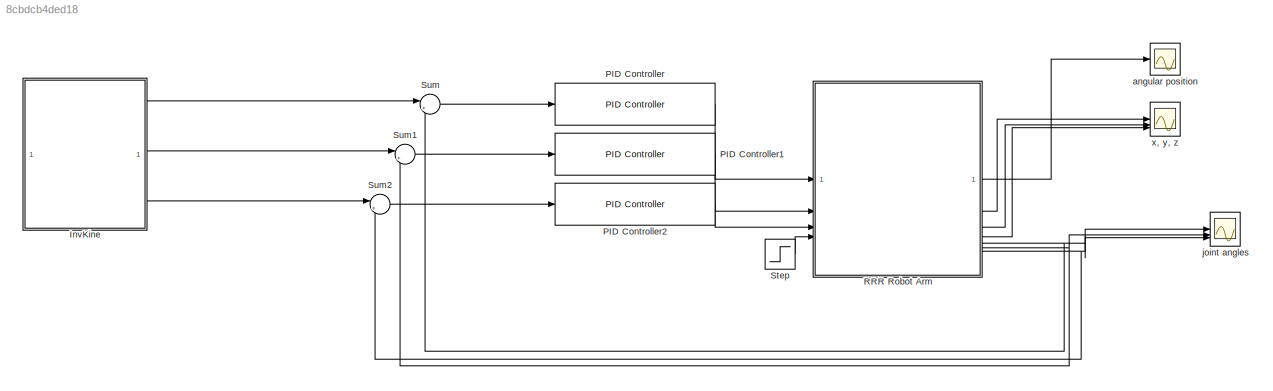
MODEL slx_8cbdcb4ded18
KIND model
CONFIG AbsTol = 1e-3
CONFIG EnableMultiTasking = on
CONFIG FixedStep = auto
CONFIG MaxStep = auto
CONFIG MinStep = auto
CONFIG RelTol = 1e-3
CONFIG SampleTimeConstraint = Unconstrained
CONFIG SolverName = VariableStepAuto
CONFIG StartTime = 0.0
CONFIG StopTime = 10
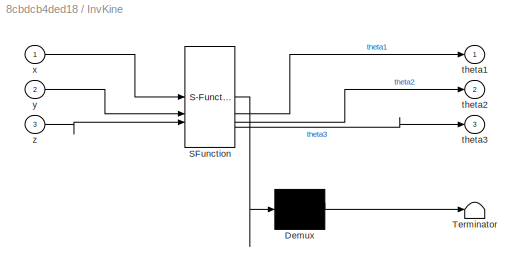
BLOCK [SubSystem] InvKine
  ErrorFcn = Stateflow.Translate.translate
  LibrarySourceBlock = simulink/User-Defined\nFunctions/MATLAB Function
  PermitHierarchicalResolution = ExplicitOnly
  SFBlockType = MATLAB Function
  TreatAsAtomicUnit = on
BLOCK [Demux] InvKine/ Demux 
  Outputs = 1
BLOCK [S-Function] InvKine/ SFunction 
  EnableBusSupport = off
  FunctionName = sf_sfun
  PortCounts = [3 4]
  SFcnIsStateOwnerBlock = off
  SFunctionDeploymentMode = off
  Tag = Stateflow S-Function 2
BLOCK [Terminator] InvKine/ Terminator 
BLOCK [Outport] InvKine/theta1
BLOCK [Outport] InvKine/theta2
  Port = 2
BLOCK [Outport] InvKine/theta3
  Port = 3
BLOCK [Inport] InvKine/x
BLOCK [Inport] InvKine/y
  Port = 2
BLOCK [Inport] InvKine/z
  Port = 3
BLOCK [Reference] PID Controller  REF=slpidlib/PID Controller
  LibrarySourceBlock = simulink/Continuous/PID Controller
  SourceBlock = slpidlib/PID Controller
  SourceType = PID 1dof
BLOCK [Reference] PID Controller1  REF=slpidlib/PID Controller
  LibrarySourceBlock = simulink/Continuous/PID Controller
  SourceBlock = slpidlib/PID Controller
  SourceType = PID 1dof
BLOCK [Reference] PID Controller2  REF=slpidlib/PID Controller
  LibrarySourceBlock = simulink/Continuous/PID Controller
  SourceBlock = slpidlib/PID Controller
  SourceType = PID 1dof
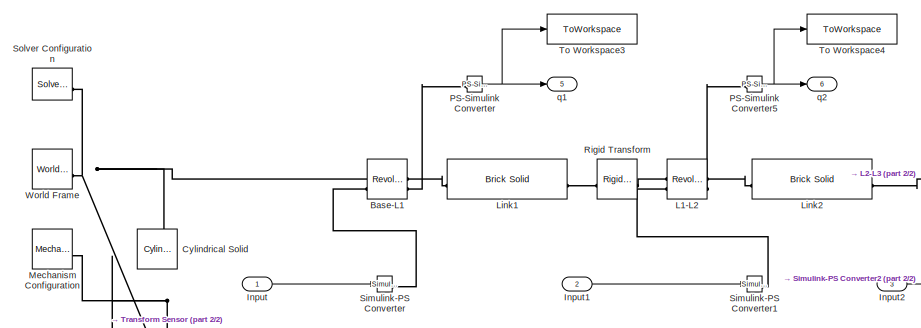
[diagram: RRR Robot Arm - part 1/2, top left region]
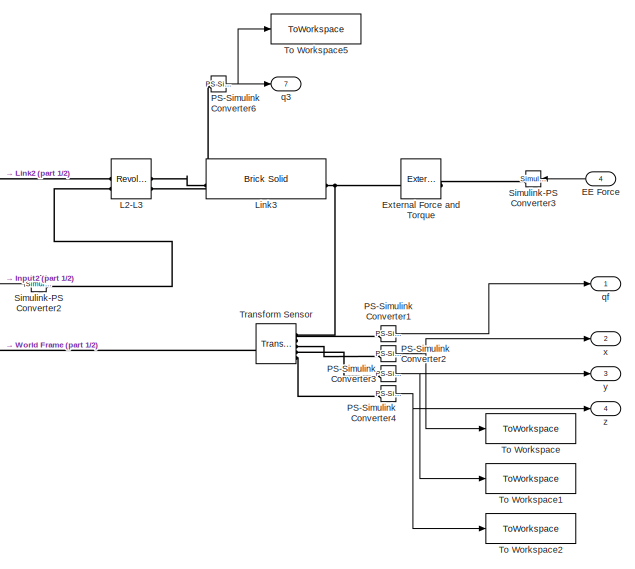
[diagram: RRR Robot Arm - part 2/2, right side, full height]
BLOCK [SubSystem] RRR Robot Arm
BLOCK [Reference] RRR Robot Arm/Base-L1  REF=sm_lib/Joints/Revolute Joint
  SourceBlock = sm_lib/Joints/Revolute Joint
  SourceType = Revolute Joint
BLOCK [Reference] RRR Robot Arm/Cylindrical Solid  REF=sm_lib/Body Elements/Cylindrical Solid
  NameLocation = left
  SourceBlock = sm_lib/Body Elements/Cylindrical Solid
  SourceType = Cylindrical Solid
BLOCK [Inport] RRR Robot Arm/EE Force
  Port = 4
BLOCK [Reference] RRR Robot Arm/External Force and Torque  REF=sm_lib/Forces and
Torques/External Force
and Torque
  NameLocation = top
  SourceBlock = sm_lib/Forces and\nTorques/External Force\nand Torque
  SourceType = External Force\nand Torque
BLOCK [Inport] RRR Robot Arm/Input
BLOCK [Inport] RRR Robot Arm/Input1
  Port = 2
BLOCK [Inport] RRR Robot Arm/Input2
  Port = 3
BLOCK [Reference] RRR Robot Arm/L1-L2  REF=sm_lib/Joints/Revolute Joint
  SourceBlock = sm_lib/Joints/Revolute Joint
  SourceType = Revolute Joint
BLOCK [Reference] RRR Robot Arm/L2-L3  REF=sm_lib/Joints/Revolute Joint
  SourceBlock = sm_lib/Joints/Revolute Joint
  SourceType = Revolute Joint
BLOCK [Reference] RRR Robot Arm/Link1  REF=sm_lib/Body Elements/Brick Solid
  SourceBlock = sm_lib/Body Elements/Brick Solid
  SourceType = Brick Solid
BLOCK [Reference] RRR Robot Arm/Link2  REF=sm_lib/Body Elements/Brick Solid
  SourceBlock = sm_lib/Body Elements/Brick Solid
  SourceType = Brick Solid
BLOCK [Reference] RRR Robot Arm/Link3  REF=sm_lib/Body Elements/Brick Solid
  SourceBlock = sm_lib/Body Elements/Brick Solid
  SourceType = Brick Solid
BLOCK [Reference] RRR Robot Arm/Mechanism Configuration  REF=sm_lib/Utilities/Mechanism
Configuration
  SourceBlock = sm_lib/Utilities/Mechanism\nConfiguration
  SourceType = Mechanism\nConfiguration
BLOCK [Reference] RRR Robot Arm/PS-Simulink Converter  REF=nesl_utility/PS-Simulink
Converter
  SourceBlock = nesl_utility/PS-Simulink\nConverter
  SourceType = PS-Simulink\nConverter
BLOCK [Reference] RRR Robot Arm/PS-Simulink Converter1  REF=nesl_utility/PS-Simulink
Converter
  SourceBlock = nesl_utility/PS-Simulink\nConverter
  SourceType = PS-Simulink\nConverter
BLOCK [Reference] RRR Robot Arm/PS-Simulink Converter2  REF=nesl_utility/PS-Simulink
Converter
  SourceBlock = nesl_utility/PS-Simulink\nConverter
  SourceType = PS-Simulink\nConverter
BLOCK [Reference] RRR Robot Arm/PS-Simulink Converter3  REF=nesl_utility/PS-Simulink
Converter
  SourceBlock = nesl_utility/PS-Simulink\nConverter
  SourceType = PS-Simulink\nConverter
BLOCK [Reference] RRR Robot Arm/PS-Simulink Converter4  REF=nesl_utility/PS-Simulink
Converter
  SourceBlock = nesl_utility/PS-Simulink\nConverter
  SourceType = PS-Simulink\nConverter
BLOCK [Reference] RRR Robot Arm/PS-Simulink Converter5  REF=nesl_utility/PS-Simulink
Converter
  SourceBlock = nesl_utility/PS-Simulink\nConverter
  SourceType = PS-Simulink\nConverter
BLOCK [Reference] RRR Robot Arm/PS-Simulink Converter6  REF=nesl_utility/PS-Simulink
Converter
  SourceBlock = nesl_utility/PS-Simulink\nConverter
  SourceType = PS-Simulink\nConverter
BLOCK [Reference] RRR Robot Arm/Rigid Transform  REF=sm_lib/Frames and
Transforms/Rigid
Transform
  SourceBlock = sm_lib/Frames and\nTransforms/Rigid\nTransform
  SourceType = Rigid\nTransform
BLOCK [Reference] RRR Robot Arm/Simulink-PS Converter  REF=nesl_utility/Simulink-PS
Converter
  SourceBlock = nesl_utility/Simulink-PS\nConverter
  SourceType = Simulink-PS\nConverter
BLOCK [Reference] RRR Robot Arm/Simulink-PS Converter1  REF=nesl_utility/Simulink-PS
Converter
  SourceBlock = nesl_utility/Simulink-PS\nConverter
  SourceType = Simulink-PS\nConverter
BLOCK [Reference] RRR Robot Arm/Simulink-PS Converter2  REF=nesl_utility/Simulink-PS
Converter
  SourceBlock = nesl_utility/Simulink-PS\nConverter
  SourceType = Simulink-PS\nConverter
BLOCK [Reference] RRR Robot Arm/Simulink-PS Converter3  REF=nesl_utility/Simulink-PS
Converter
  SourceBlock = nesl_utility/Simulink-PS\nConverter
  SourceType = Simulink-PS\nConverter
BLOCK [Reference] RRR Robot Arm/Solver Configuration  REF=nesl_utility/Solver
Configuration
  SourceBlock = nesl_utility/Solver\nConfiguration
  SourceType = Solver\nConfiguration
BLOCK [ToWorkspace] RRR Robot Arm/To Workspace
  FixptAsFi = on
  MaxDataPoints = inf
  SampleTime = -1
  SaveFormat = Timeseries
  VariableName = X
BLOCK [ToWorkspace] RRR Robot Arm/To Workspace1
  FixptAsFi = on
  MaxDataPoints = inf
  SampleTime = -1
  SaveFormat = Timeseries
  VariableName = Y
BLOCK [ToWorkspace] RRR Robot Arm/To Workspace2
  FixptAsFi = on
  MaxDataPoints = inf
  SampleTime = -1
  SaveFormat = Timeseries
  VariableName = Z
BLOCK [ToWorkspace] RRR Robot Arm/To Workspace3
  FixptAsFi = on
  MaxDataPoints = inf
  SampleTime = -1
  SaveFormat = Timeseries
  VariableName = theta1
BLOCK [ToWorkspace] RRR Robot Arm/To Workspace4
  FixptAsFi = on
  MaxDataPoints = inf
  SampleTime = -1
  SaveFormat = Timeseries
  VariableName = theta2
BLOCK [ToWorkspace] RRR Robot Arm/To Workspace5
  FixptAsFi = on
  MaxDataPoints = inf
  SampleTime = -1
  SaveFormat = Timeseries
  VariableName = theta3
BLOCK [Reference] RRR Robot Arm/Transform Sensor  REF=sm_lib/Frames and
Transforms/Transform
Sensor
  SourceBlock = sm_lib/Frames and\nTransforms/Transform\nSensor
  SourceType = Transform\nSensor
BLOCK [Reference] RRR Robot Arm/World Frame  REF=sm_lib/Frames and
Transforms/World Frame
  SourceBlock = sm_lib/Frames and\nTransforms/World Frame
  SourceType = World Frame
BLOCK [Outport] RRR Robot Arm/q1
  Port = 5
BLOCK [Outport] RRR Robot Arm/q2
  Port = 6
BLOCK [Outport] RRR Robot Arm/q3
  Port = 7
BLOCK [Outport] RRR Robot Arm/qf
BLOCK [Outport] RRR Robot Arm/x
  Port = 2
BLOCK [Outport] RRR Robot Arm/y
  Port = 3
BLOCK [Outport] RRR Robot Arm/z
  Port = 4
BLOCK [Step] Step
  After = 0
  SampleTime = 0
BLOCK [Sum] Sum
  Inputs = |+-
BLOCK [Sum] Sum1
  Inputs = |+-
BLOCK [Sum] Sum2
  Inputs = |+-
BLOCK [Scope] angular position 
  Floating = off
  NumInputPorts = 1
  ScopeSpecificationString = Simulink.scopes.TimeScopeBlockCfg('CurrentConfiguration', extmgr.ConfigurationSet(extmgr.Configuration('Core','General UI',true),extmgr.Configuration('Core','Source UI',true),extmgr.Configuration('Sources','WiredSimulink',true),extmgr.Configuration('Visuals','Time Domain',true,'SerializedDisplays',{struct('MinYLimReal','1.57055','MaxYLimReal','1.57304','YLabelReal','','MinYLimMag','1.57055','MaxYL...<+1408ch>
BLOCK [Scope] joint angles
  Floating = off
  NumInputPorts = 3
  ScopeSpecificationString = Simulink.scopes.TimeScopeBlockCfg('CurrentConfiguration', extmgr.ConfigurationSet(extmgr.Configuration('Core','General UI',true),extmgr.Configuration('Core','Source UI',true),extmgr.Configuration('Sources','WiredSimulink',true,'DataLoggingVariableName','ScopeData2'),extmgr.Configuration('Visuals','Time Domain',true,'SerializedDisplays',{struct('MinYLimReal','-0.9','MaxYLimReal','2.25496','YLabelRe...<+1473ch>
BLOCK [Scope] x, y, z
  Floating = off
  NumInputPorts = 3
  ScopeSpecificationString = Simulink.scopes.TimeScopeBlockCfg('CurrentConfiguration', extmgr.ConfigurationSet(extmgr.Configuration('Core','General UI',true),extmgr.Configuration('Core','Source UI',true),extmgr.Configuration('Sources','WiredSimulink',true,'DataLoggingVariableName','ScopeData1'),extmgr.Configuration('Visuals','Time Domain',true,'SerializedDisplays',{struct('MinYLimReal','-1.0','MaxYLimReal','1.0','YLabelReal',...<+1456ch>
LINE InvKine:1 -> Sum:1
LINE InvKine:2 -> Sum1:1
LINE InvKine:3 -> Sum2:1
LINE PID Controller1:1 -> RRR Robot Arm:2
LINE PID Controller2:1 -> RRR Robot Arm:3
LINE PID Controller:1 -> RRR Robot Arm:1
LINE RRR Robot Arm/EE Force:1 -> RRR Robot Arm/Simulink-PS Converter3:1
LINE RRR Robot Arm/Input1:1 -> RRR Robot Arm/Simulink-PS Converter1:1
LINE RRR Robot Arm/Input2:1 -> RRR Robot Arm/Simulink-PS Converter2:1
LINE RRR Robot Arm/Input:1 -> RRR Robot Arm/Simulink-PS Converter:1
LINE RRR Robot Arm/PS-Simulink Converter1:1 -> RRR Robot Arm/qf:1
NET RRR Robot Arm/PS-Simulink Converter2:1 -> RRR Robot Arm/To Workspace:1, RRR Robot Arm/x:1
NET RRR Robot Arm/PS-Simulink Converter3:1 -> RRR Robot Arm/To Workspace1:1, RRR Robot Arm/y:1
NET RRR Robot Arm/PS-Simulink Converter4:1 -> RRR Robot Arm/To Workspace2:1, RRR Robot Arm/z:1
NET RRR Robot Arm/PS-Simulink Converter5:1 -> RRR Robot Arm/To Workspace4:1, RRR Robot Arm/q2:1
NET RRR Robot Arm/PS-Simulink Converter6:1 -> RRR Robot Arm/To Workspace5:1, RRR Robot Arm/q3:1
NET RRR Robot Arm/PS-Simulink Converter:1 -> RRR Robot Arm/To Workspace3:1, RRR Robot Arm/q1:1
LINE RRR Robot Arm:1 -> angular position :1
LINE RRR Robot Arm:2 -> x, y, z:1
LINE RRR Robot Arm:3 -> x, y, z:2
LINE RRR Robot Arm:4 -> x, y, z:3
NET RRR Robot Arm:5 -> Sum:2, joint angles:1
NET RRR Robot Arm:6 -> Sum1:2, joint angles:2
NET RRR Robot Arm:7 -> Sum2:2, joint angles:3
LINE Step:1 -> RRR Robot Arm:4
LINE Sum1:1 -> PID Controller1:1
LINE Sum2:1 -> PID Controller2:1
LINE Sum:1 -> PID Controller:1
PNET net1: RRR Robot Arm/Base-L1:LConn1 -- RRR Robot Arm/Cylindrical Solid:LConn1 -- RRR Robot Arm/Mechanism Configuration:RConn1 -- RRR Robot Arm/Solver Configuration:RConn1 -- RRR Robot Arm/Transform Sensor:LConn1 -- RRR Robot Arm/World Frame:RConn1
PLINE RRR Robot Arm/Base-L1:LConn2 -- RRR Robot Arm/Simulink-PS Converter:RConn1
PLINE RRR Robot Arm/Base-L1:RConn1 -- RRR Robot Arm/Link1:RConn1
PLINE RRR Robot Arm/Base-L1:RConn2 -- RRR Robot Arm/PS-Simulink Converter:LConn1
PLINE RRR Robot Arm/External Force and Torque:LConn1 -- RRR Robot Arm/Simulink-PS Converter3:RConn1
PNET net2: RRR Robot Arm/External Force and Torque:RConn1 -- RRR Robot Arm/Link3:RConn1 -- RRR Robot Arm/Transform Sensor:RConn1
PLINE RRR Robot Arm/L1-L2:LConn1 -- RRR Robot Arm/Rigid Transform:RConn1
PLINE RRR Robot Arm/L1-L2:LConn2 -- RRR Robot Arm/Simulink-PS Converter1:RConn1
PLINE RRR Robot Arm/L1-L2:RConn1 -- RRR Robot Arm/Link2:RConn1
PLINE RRR Robot Arm/L1-L2:RConn2 -- RRR Robot Arm/PS-Simulink Converter5:LConn1
PLINE RRR Robot Arm/L2-L3:LConn1 -- RRR Robot Arm/Link2:LConn1
PLINE RRR Robot Arm/L2-L3:LConn2 -- RRR Robot Arm/Simulink-PS Converter2:RConn1
PLINE RRR Robot Arm/L2-L3:RConn1 -- RRR Robot Arm/Link3:LConn1
PLINE RRR Robot Arm/L2-L3:RConn2 -- RRR Robot Arm/PS-Simulink Converter6:LConn1
PLINE RRR Robot Arm/Link1:LConn1 -- RRR Robot Arm/Rigid Transform:LConn1
PLINE RRR Robot Arm/PS-Simulink Converter1:LConn1 -- RRR Robot Arm/Transform Sensor:RConn2
PLINE RRR Robot Arm/PS-Simulink Converter2:LConn1 -- RRR Robot Arm/Transform Sensor:RConn3
PLINE RRR Robot Arm/PS-Simulink Converter3:LConn1 -- RRR Robot Arm/Transform Sensor:RConn4
PLINE RRR Robot Arm/PS-Simulink Converter4:LConn1 -- RRR Robot Arm/Transform Sensor:RConn5
note: NET lines group one-source signal fan-out (src -> all destinations, sorted); 1:1 wires keep LINE; PNET lines group multi-terminal physical nets as a canonical sorted terminal list (undirected conserving connections); 2-terminal nets keep the pairwise PLINE form
CHART InvKine states=1 transitions=1
  STATE_LABEL 'eML_blk_kernel()'
  STATE_LABEL "SCRIPT:\nfunction [theta1, theta2, theta3]   = InvKine(x, y, z)\n    model = 'invkine.h5'\n    net = importKerasNetwork(model)\n    num = input(50000,:)\n    y = predict(net, [num])\n    theta1 = y(1);\n    theta2 = y(2);\n    theta3 = y(3);\n    \n    x = timeseries2timetable(out.X);\n    y = timeseries2timetable(out.Y);\n    z = timeseries2timetable(out.Z);\n    \n    x = timetable2table(x);\n    y = timetable...<+47ch>"
CHART  states=0 transitions=0
